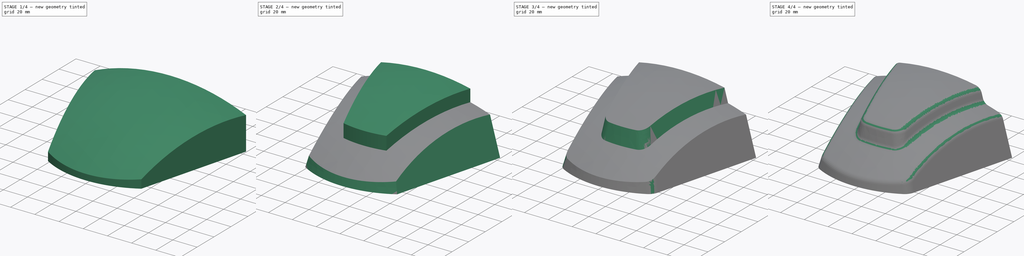
[diagram: build sequence overview — one tinted view per stage of 4, left to right]
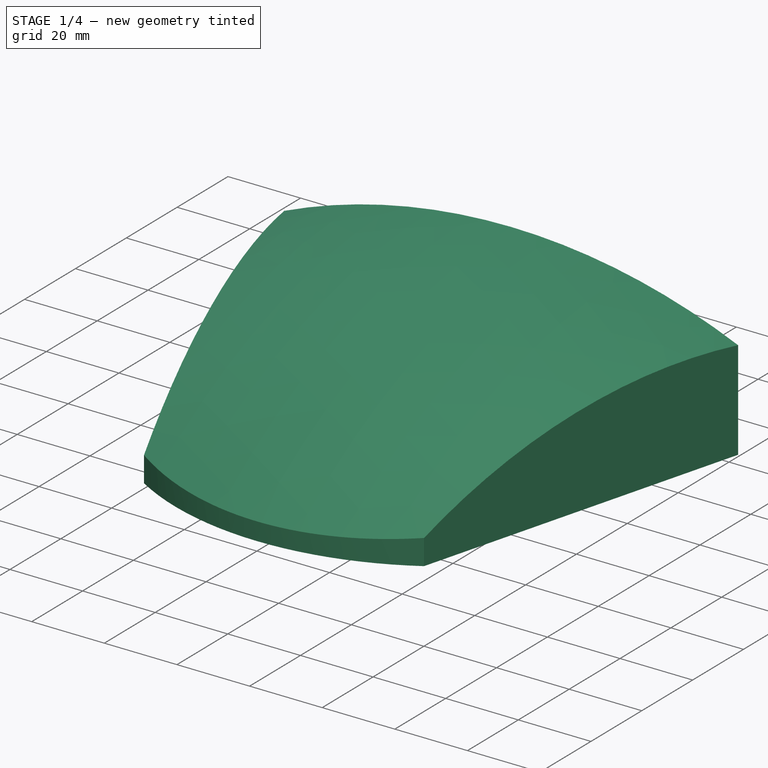
[diagram: stage 1 of 4 — iso view after this stage's code; geometry added in this stage tinted green]
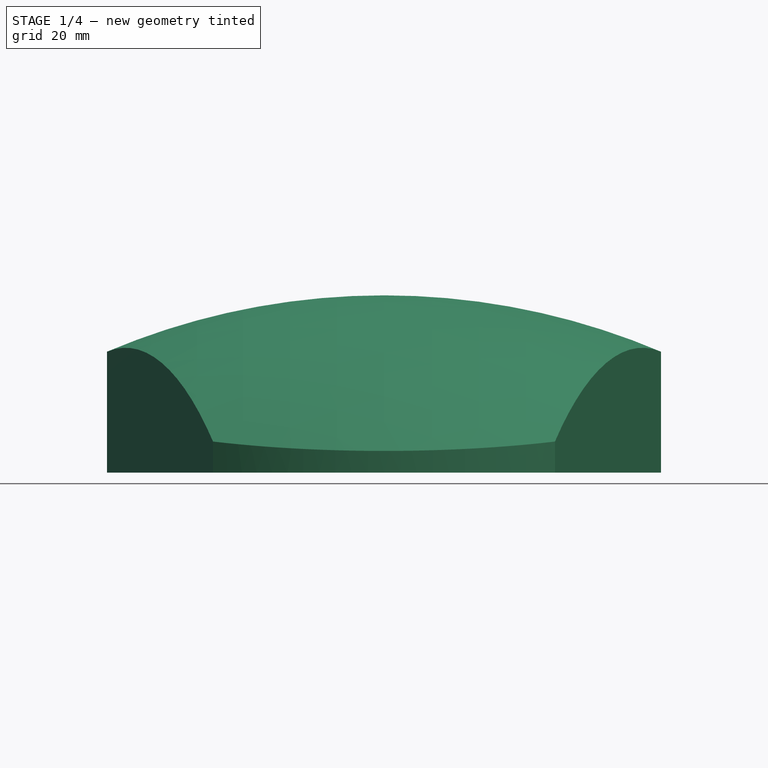
[diagram: stage 1 of 4 — front view after this stage's code; geometry added in this stage tinted green]
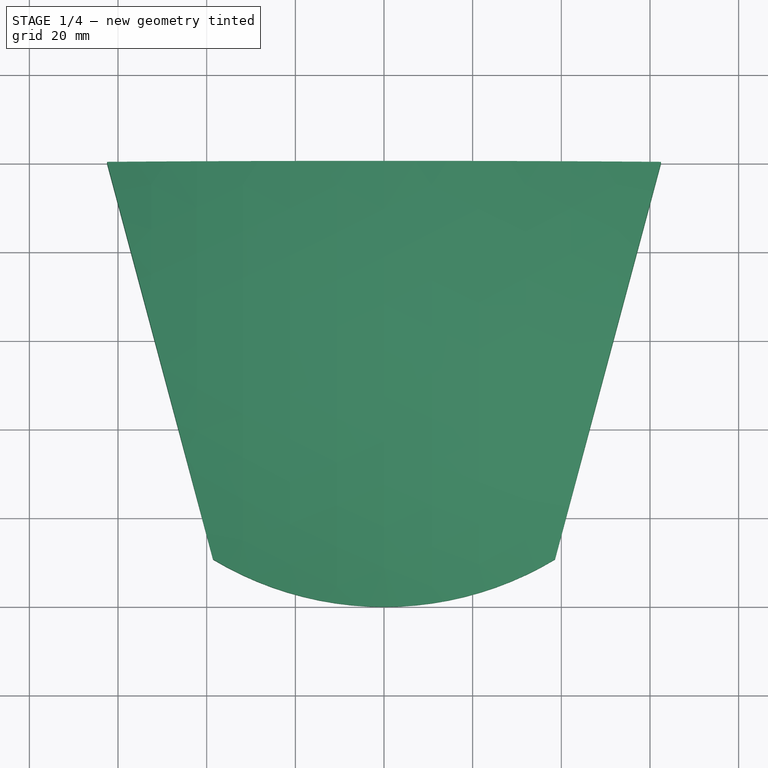
[diagram: stage 1 of 4 — top view after this stage's code; geometry added in this stage tinted green]
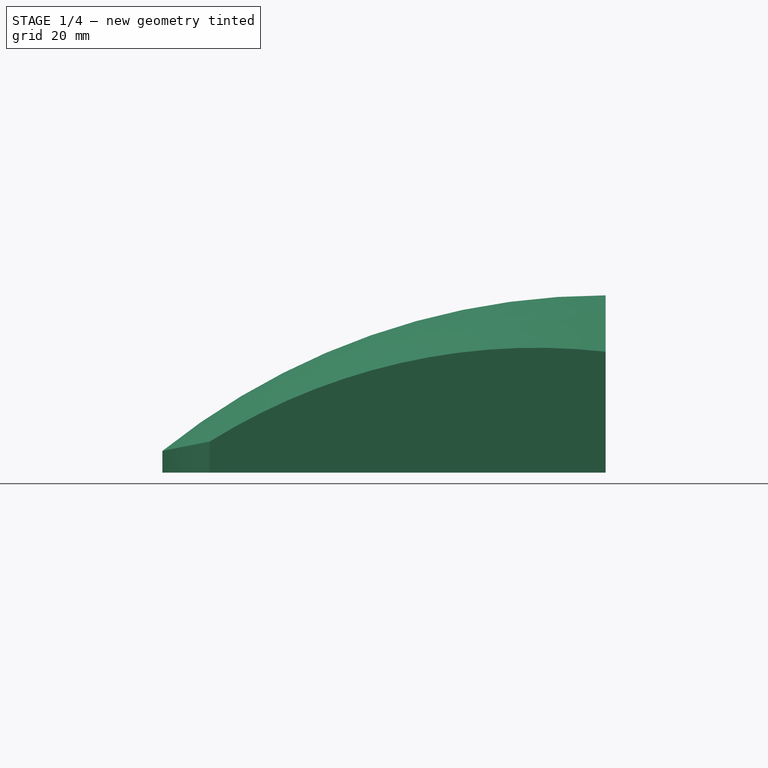
[diagram: stage 1 of 4 — right view after this stage's code; geometry added in this stage tinted green]
FCSTD DOCUMENT  (FreeCAD 1.0R39319 (Git))
Label: Mania2004
License: All rights reserved
LicenseURL: https://en.wikipedia.org/wiki/All_rights_reserved
objects: Sketcher::SketchObject×6, PartDesign::Draft×3, PartDesign::Pad×2, PartDesign::SubtractivePipe×2, PartDesign::Fillet×2, PartDesign::Thickness×1, PartDesign::Body×1
note: 43 computed .brp shape members not serialized (recipe doc carries the construction recipe); baked Part::Feature solids carry a one-line shape summary decoded from their .brp

FEATURE [Sketcher::SketchObject] Sketch
  ArcFitTolerance = 1e-06
  AttachmentSupport = -> [XY_Plane]
  FullyConstrained = true
  MakeInternals = false
  MapMode = 5
  sketch-geometry (5):
    g0: LineSegment StartX=-62.5 StartY=0 StartZ=0 EndX=62.5 EndY=0 EndZ=0
    g1: LineSegment StartX=62.5 StartY=0 StartZ=0 EndX=38.5654 EndY=-89.325 EndZ=0
    g2: LineSegment StartX=-38.5654 StartY=-89.325 StartZ=0 EndX=-62.5 EndY=0 EndZ=0
    g3: ArcOfCircle CenterX=5.6e-15 CenterY=-25 CenterZ=0 NormalX=0 NormalY=0 NormalZ=1 AngleXU=0 Radius=75 StartAngle=4.17231 EndAngle=5.25247
    g4: GeomPoint X=0 Y=-100 Z=0
  constraints (13):
    c: PointOnObject(g0,g-1)
    c: Coincident(g0,g1)
    c: Coincident(g2,g0)
    c: DistanceX(g0,g0) = 125
    c: Coincident(g3,g1)
    c: Coincident(g3,g2)
    c: Radius(g3) = 75
    c: Symmetric(g1,g2,g-2)
    c: Symmetric(g0,g0,g-2)
    c: PointOnObject(g4,g3)
    c: PointOnObject(g4,g-2)
    c: DistanceY(g4,g-1) = 100
    c: Angle(g1,g-2) = 0.261799
FEATURE [PartDesign::Pad] Pad
  Direction = (0,0,1)
  Length = 40
  Length2 = 10
  Profile = -> Sketch
  ReferenceAxis = -> Sketch [N_Axis]
  Refine = true
  Suppressed = false
  Type = 0
FEATURE [Sketcher::SketchObject] Sketch001
  ArcFitTolerance = 1e-06
  AttachmentSupport = -> [YZ_Plane]
  FullyConstrained = true
  MakeInternals = false
  MapMode = 5
  Placement = pos=(0,0,0) rot=(0.57735,0.57735,0.57735;2.0944rad)
  sketch-geometry (1):
    g0: ArcOfCircle CenterX=0 CenterY=-120 CenterZ=0 NormalX=0 NormalY=0 NormalZ=1 AngleXU=0 Radius=160 StartAngle=1.5708 EndAngle=2.29353
  constraints (5):
    c: PointOnObject(g0,g-2)
    c: PointOnObject(g0,g-2)
    c: PointOnObject(g0,g-1)
    c: Radius(g0) = 160
    c: Distance(g0,g-1) = 120
FEATURE [Sketcher::SketchObject] Sketch002
  ArcFitTolerance = 1e-06
  AttachmentSupport = -> [XZ_Plane]
  ExternalGeometry = -> [Sketch001]
  FullyConstrained = true
  MakeInternals = false
  MapMode = 5
  Placement = pos=(0,0,0) rot=(1,0,0;1.5708rad)
  sketch-geometry (2):
    g0: ArcOfCircle CenterX=0 CenterY=-120 CenterZ=0 NormalX=0 NormalY=0 NormalZ=1 AngleXU=0 Radius=160 StartAngle=0.848062 EndAngle=2.29353
    g1: ArcOfCircle CenterX=0 CenterY=0 CenterZ=0 NormalX=0 NormalY=0 NormalZ=1 AngleXU=0 Radius=105.83 StartAngle=0 EndAngle=3.14159
  constraints (8):
    c: PointOnObject(g-3,g0)
    c: PointOnObject(g0,g-1)
    c: PointOnObject(g0,g-1)
    c: Radius(g0) = 160
    c: PointOnObject(g0,g-2)
    c: Coincident(g1,g0)
    c: Coincident(g1,g-1)
    c: PointOnObject(g1,g-1)
FEATURE [PartDesign::SubtractivePipe] SubtractivePipe
  AuxilleryCurvelinear = true
  AuxillerySpineTangent = false
  BaseFeature = -> Pad
  Binormal = (0,0,0)
  Mode = 0
  Profile = -> Sketch002
  Refine = true
  Spine = -> Sketch001
  SpineTangent = false
  Suppressed = false
  Transformation = 0
  Transition = 0
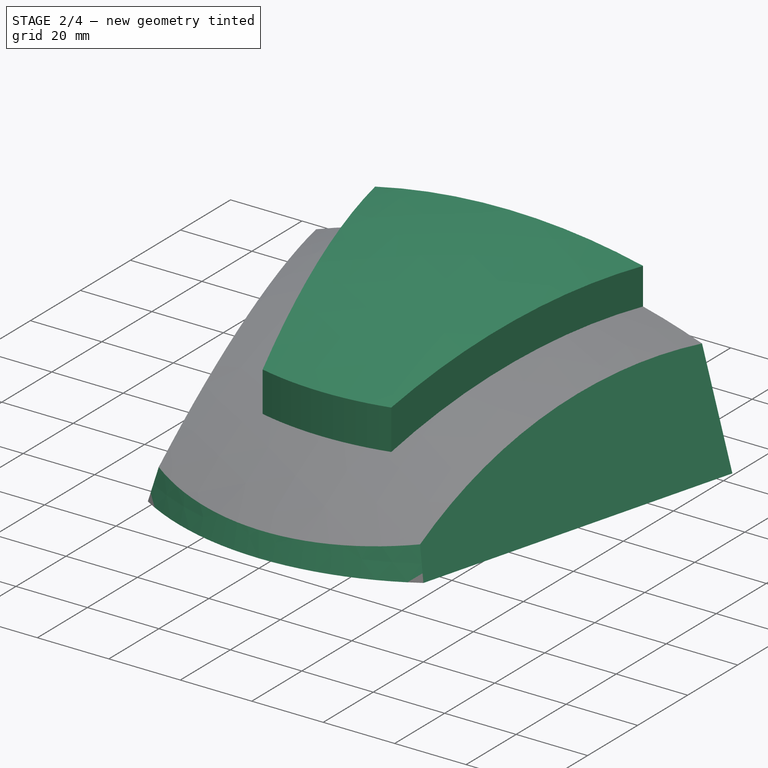
[diagram: stage 2 of 4 — iso view after this stage's code; geometry added in this stage tinted green]
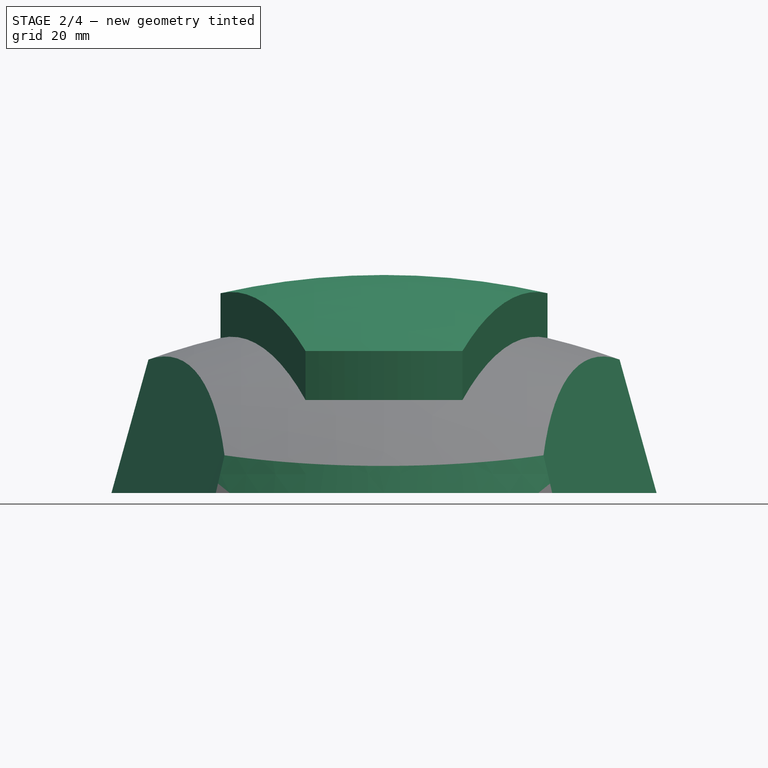
[diagram: stage 2 of 4 — front view after this stage's code; geometry added in this stage tinted green]
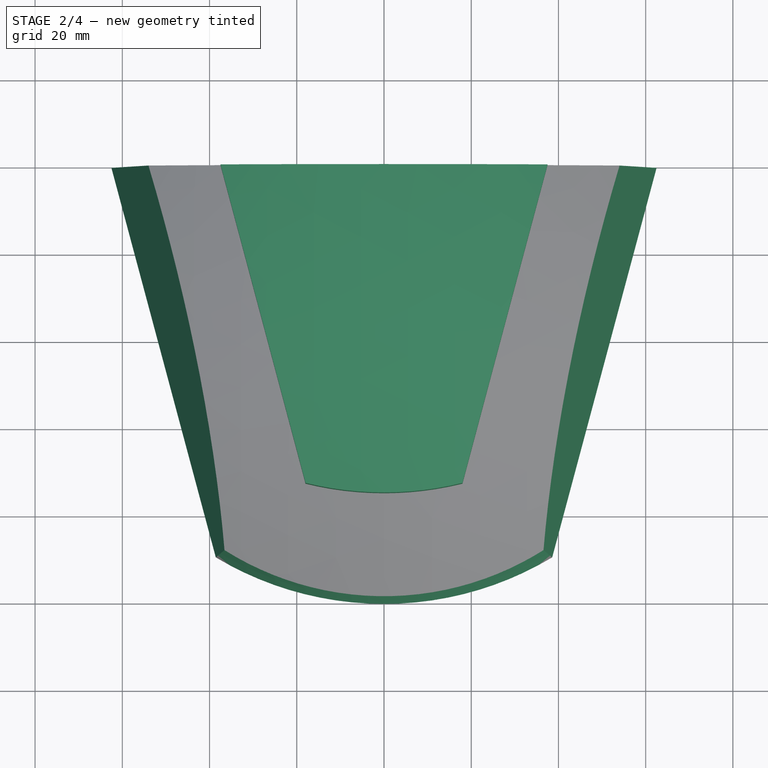
[diagram: stage 2 of 4 — top view after this stage's code; geometry added in this stage tinted green]
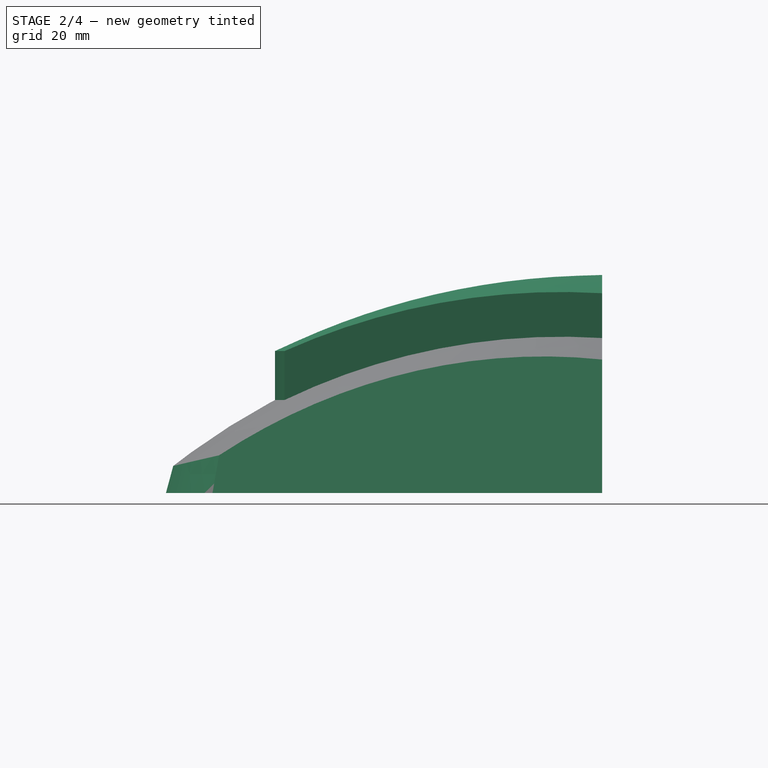
[diagram: stage 2 of 4 — right view after this stage's code; geometry added in this stage tinted green]
FEATURE [Sketcher::SketchObject] Sketch003
  ArcFitTolerance = 1e-06
  AttachmentSupport = -> [XY_Plane]
  ExternalGeometry = -> [SubtractivePipe]
  FullyConstrained = true
  MakeInternals = false
  MapMode = 5
  sketch-geometry (6):
    g0: LineSegment StartX=-37.5 StartY=0 StartZ=0 EndX=37.5 EndY=0 EndZ=0
    g1: LineSegment StartX=-37.5 StartY=0 StartZ=0 EndX=-17.9905 EndY=-72.8103 EndZ=0
    g2: LineSegment StartX=37.5 StartY=0 StartZ=0 EndX=17.9905 EndY=-72.8103 EndZ=0
    g3: ArcOfCircle CenterX=0 CenterY=5.8e-15 CenterZ=0 NormalX=0 NormalY=0 NormalZ=1 AngleXU=0 Radius=75 StartAngle=4.47015 EndAngle=4.95462
    g4: GeomPoint X=0 Y=-75 Z=0
    g5: GeomPoint X=0 Y=-100 Z=0
  constraints (16):
    c: PointOnObject(g0,g-1)
    c: Symmetric(g0,g0,g-2)
    c: Distance(g0,g-4) = 25
    c: Coincident(g1,g0)
    c: Coincident(g2,g0)
    c: Parallel(g1,g-4)
    c: Coincident(g3,g2)
    c: PointOnObject(g4,g3)
    c: PointOnObject(g4,g-2)
    c: PointOnObject(g5,g-5)
    c: PointOnObject(g5,g-2)
    c: DistanceY(g5,g4) = 25
    c: Coincident(g3,g1)
    c: PointOnObject(g3,g-2)
    c: Radius(g3) = 75
    c: Parallel(g2,g-3)
FEATURE [PartDesign::Pad] Pad001
  BaseFeature = -> SubtractivePipe
  Direction = (0,0,1)
  Length = 50
  Length2 = 10
  Profile = -> Sketch003
  ReferenceAxis = -> Sketch003 [N_Axis]
  Refine = true
  Suppressed = false
  Type = 0
FEATURE [Sketcher::SketchObject] Sketch004
  ArcFitTolerance = 1e-06
  AttachmentSupport = -> [YZ_Plane]
  ExternalGeometry = -> [Pad001]
  FullyConstrained = true
  MakeInternals = false
  MapMode = 5
  Placement = pos=(0,0,0) rot=(0.57735,0.57735,0.57735;2.0944rad)
  sketch-geometry (1):
    g0: ArcOfCircle CenterX=0 CenterY=-120 CenterZ=0 NormalX=0 NormalY=0 NormalZ=1 AngleXU=0 Radius=170 StartAngle=1.5708 EndAngle=2.35792
  constraints (4):
    c: PointOnObject(g0,g-2)
    c: Coincident(g0,g-3)
    c: Radius(g0) = 170
    c: PointOnObject(g0,g-1)
FEATURE [Sketcher::SketchObject] Sketch005
  ArcFitTolerance = 1e-06
  AttachmentSupport = -> [XZ_Plane]
  ExternalGeometry = -> [Sketch004]
  FullyConstrained = true
  MakeInternals = false
  MapMode = 5
  Placement = pos=(0,0,0) rot=(1,0,0;1.5708rad)
  sketch-geometry (2):
    g0: ArcOfCircle CenterX=0 CenterY=-120 CenterZ=0 NormalX=0 NormalY=0 NormalZ=1 AngleXU=0 Radius=170 StartAngle=0.783668 EndAngle=2.35792
    g1: ArcOfCircle CenterX=8.8e-15 CenterY=-50 CenterZ=0 NormalX=0 NormalY=0 NormalZ=1 AngleXU=0 Radius=130.384 StartAngle=0.393564 EndAngle=2.74803
  constraints (8):
    c: PointOnObject(g0,g-2)
    c: PointOnObject(g0,g-1)
    c: PointOnObject(g0,g-1)
    c: PointOnObject(g-3,g0)
    c: Radius(g0) = 170
    c: Coincident(g1,g0)
    c: Coincident(g1,g0)
    c: Distance(g1,g-1) = 50
FEATURE [PartDesign::SubtractivePipe] SubtractivePipe001
  AuxilleryCurvelinear = true
  AuxillerySpineTangent = false
  BaseFeature = -> Pad001
  Binormal = (0,0,0)
  Mode = 0
  Profile = -> Sketch005
  Refine = true
  Spine = -> Sketch004
  SpineTangent = false
  Suppressed = false
  Transformation = 0
  Transition = 0
FEATURE [PartDesign::Draft] Draft
  Angle = 15
  Base = -> SubtractivePipe001 [Face2,Face4,Face3]
  BaseFeature = -> SubtractivePipe001
  PullDirection = -> SubtractivePipe001 [Edge11]
  Refine = true
  SupportTransform = false
  Suppressed = false
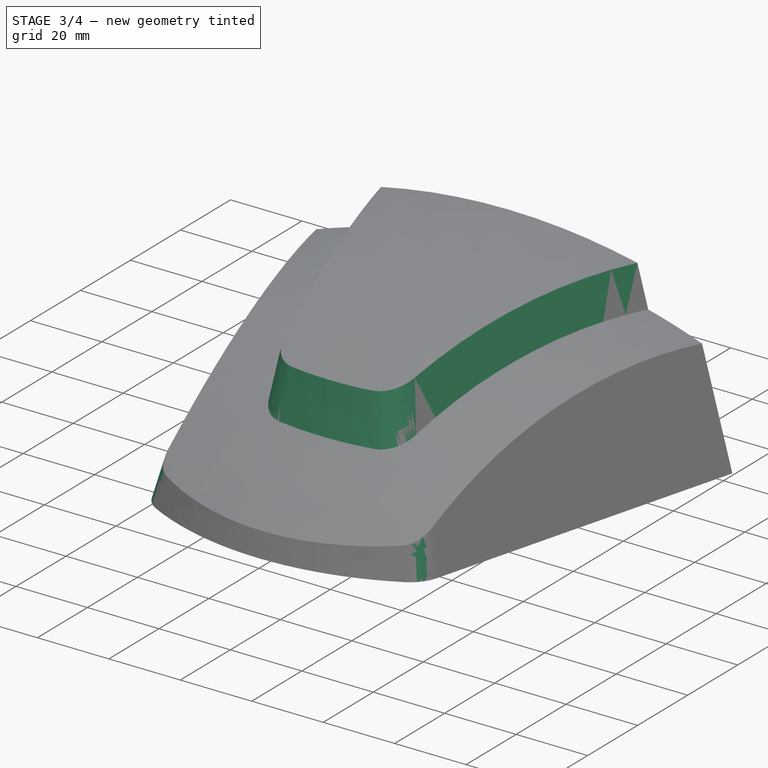
[diagram: stage 3 of 4 — iso view after this stage's code; geometry added in this stage tinted green]
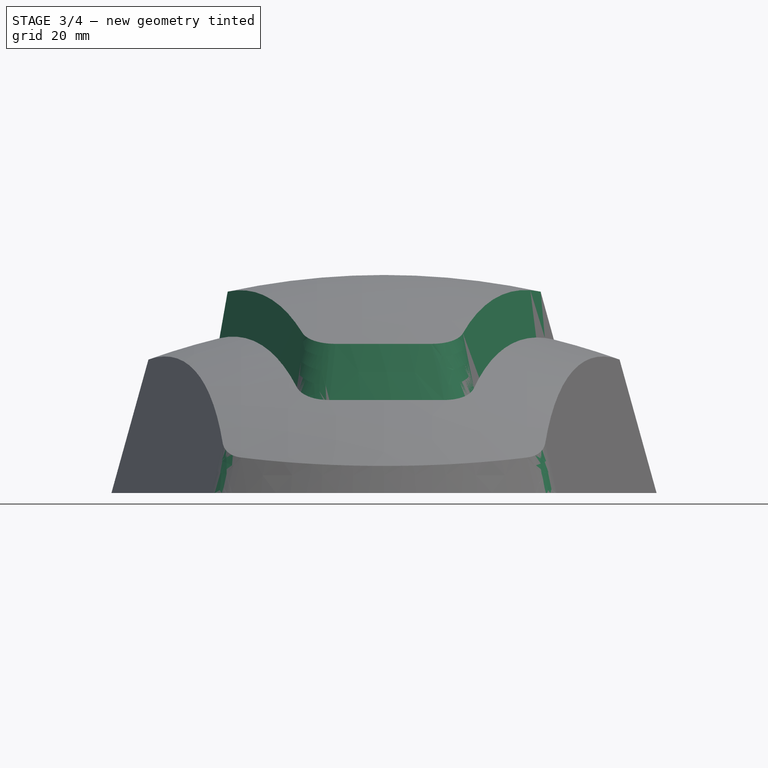
[diagram: stage 3 of 4 — front view after this stage's code; geometry added in this stage tinted green]
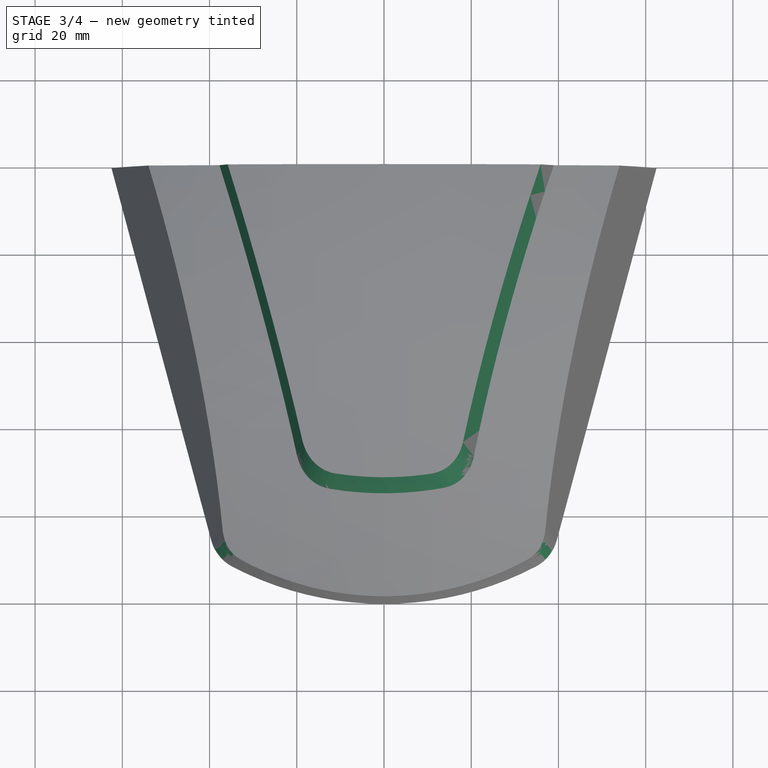
[diagram: stage 3 of 4 — top view after this stage's code; geometry added in this stage tinted green]
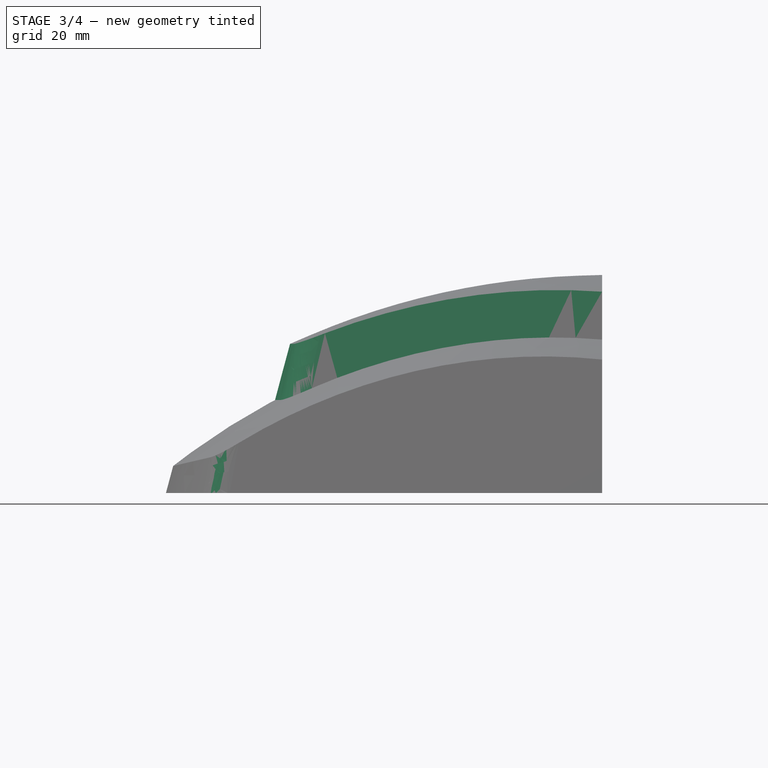
[diagram: stage 3 of 4 — right view after this stage's code; geometry added in this stage tinted green]
FEATURE [PartDesign::Draft] Draft001
  Angle = 15
  Base = -> Draft [Face7]
  BaseFeature = -> Draft
  PullDirection = -> Draft [Edge17]
  Refine = true
  SupportTransform = false
  Suppressed = false
FEATURE [PartDesign::Draft] Draft002
  Angle = 15
  Base = -> Draft001 [Face8,Face6]
  BaseFeature = -> Draft001
  Refine = true
  SupportTransform = false
  Suppressed = false
FEATURE [PartDesign::Fillet] Fillet
  Base = -> Draft002 [Edge21,Edge23,Edge13,Edge10]
  BaseFeature = -> Draft002
  Radius = 10
  Refine = true
  SupportTransform = false
  Suppressed = false
  UseAllEdges = false
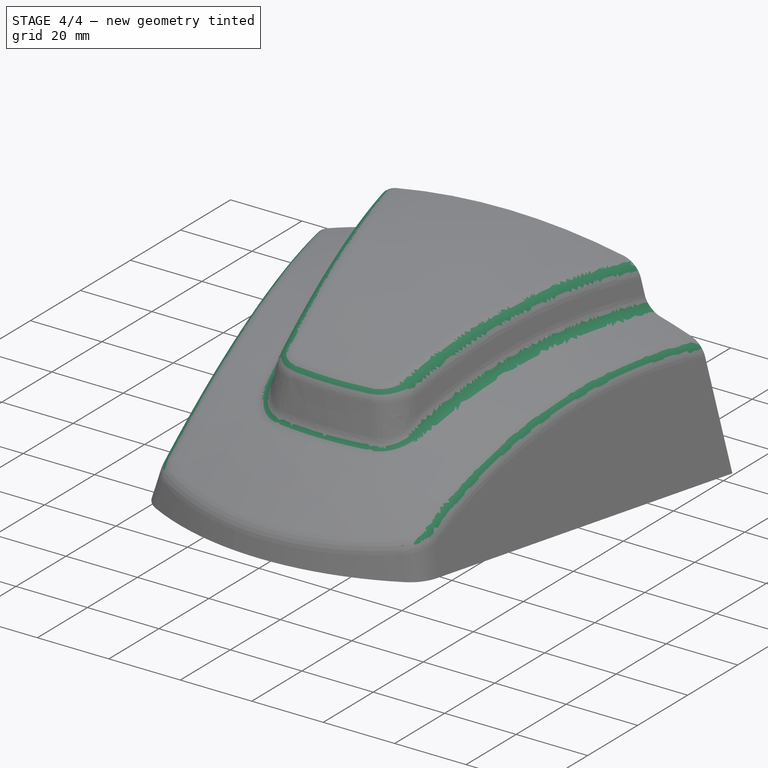
[diagram: stage 4 of 4 — iso view after this stage's code; geometry added in this stage tinted green]
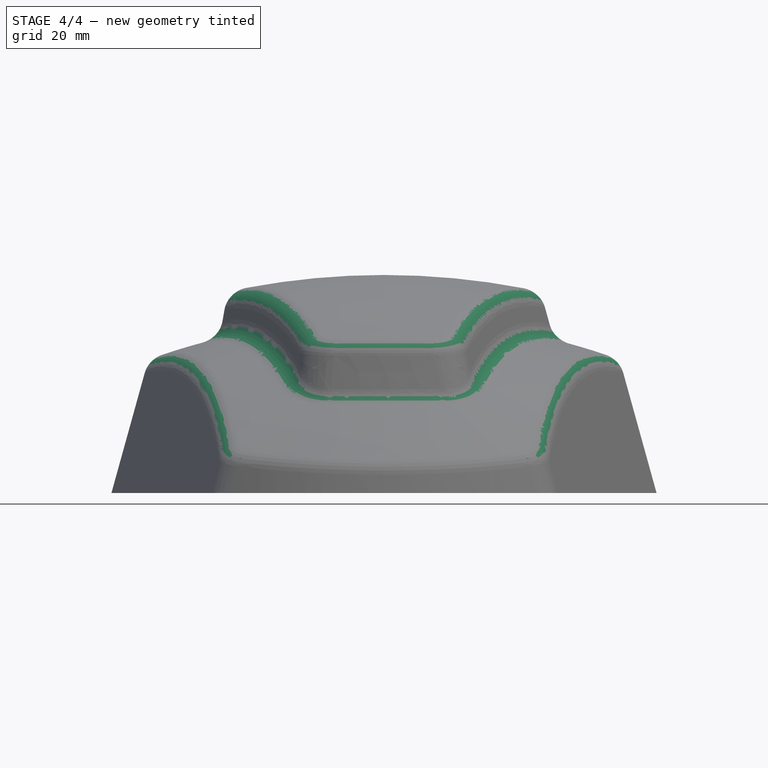
[diagram: stage 4 of 4 — front view after this stage's code; geometry added in this stage tinted green]
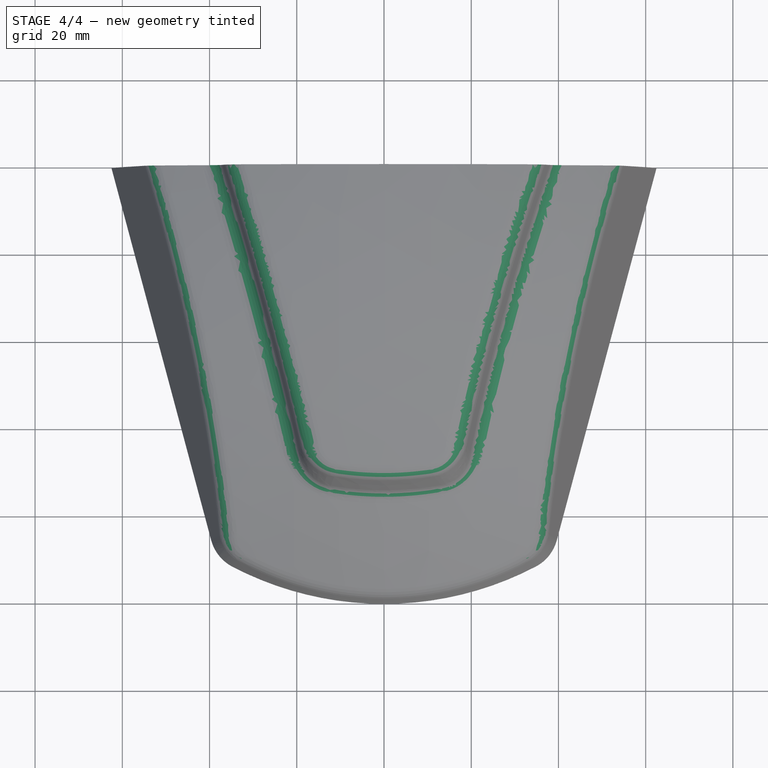
[diagram: stage 4 of 4 — top view after this stage's code; geometry added in this stage tinted green]
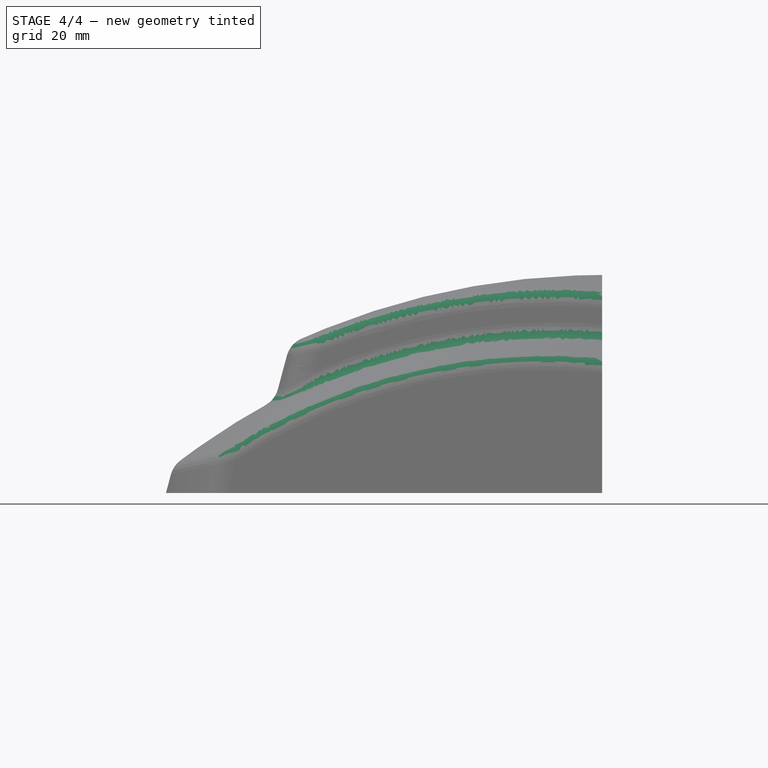
[diagram: stage 4 of 4 — right view after this stage's code; geometry added in this stage tinted green]
FEATURE [PartDesign::Fillet] Fillet001
  Base = -> Fillet [Edge34,Edge9,Edge4]
  BaseFeature = -> Fillet
  Radius = 6
  Refine = true
  SupportTransform = false
  Suppressed = false
  UseAllEdges = false
FEATURE [PartDesign::Thickness] Thickness
  Base = -> Fillet001 [Face14,Face2]
  BaseFeature = -> Fillet001
  Intersection = false
  Join = 0
  Mode = 0
  Refine = true
  Reversed = true
  SupportTransform = false
  Suppressed = false
  Value = 4
FEATURE [PartDesign::Body] Body
  AllowCompound = false
  Group = -> [Sketch,Pad,Sketch001,Sketch002,SubtractivePipe,Sketch003,Pad001,Sketch004,Sketch005,SubtractivePipe001,Draft,Draft001,Draft002,Fillet,Fillet001,Thickness]
  Origin = -> Origin
  Tip = -> Thickness
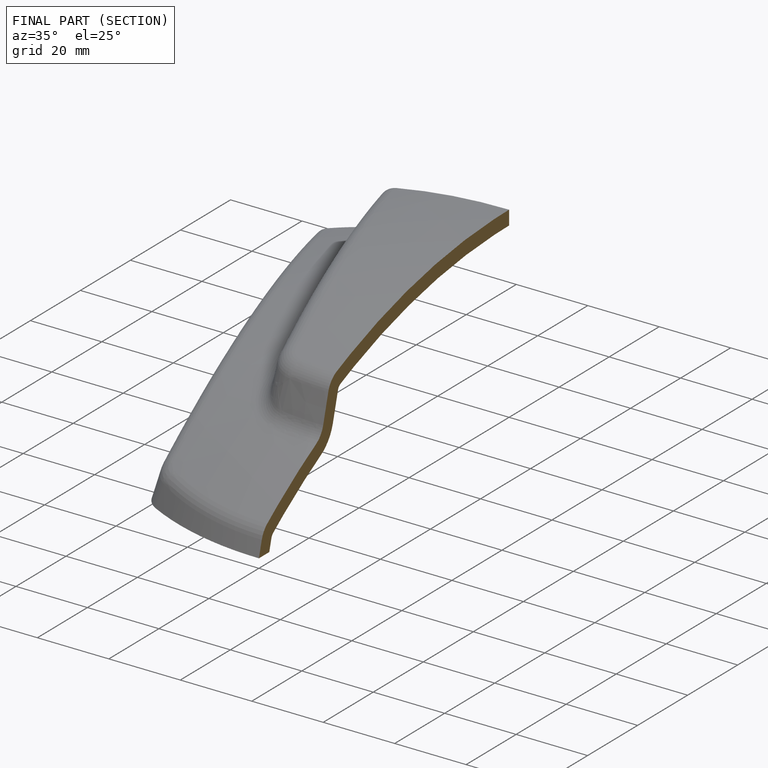
[diagram: finished part — half-section view (interior)]
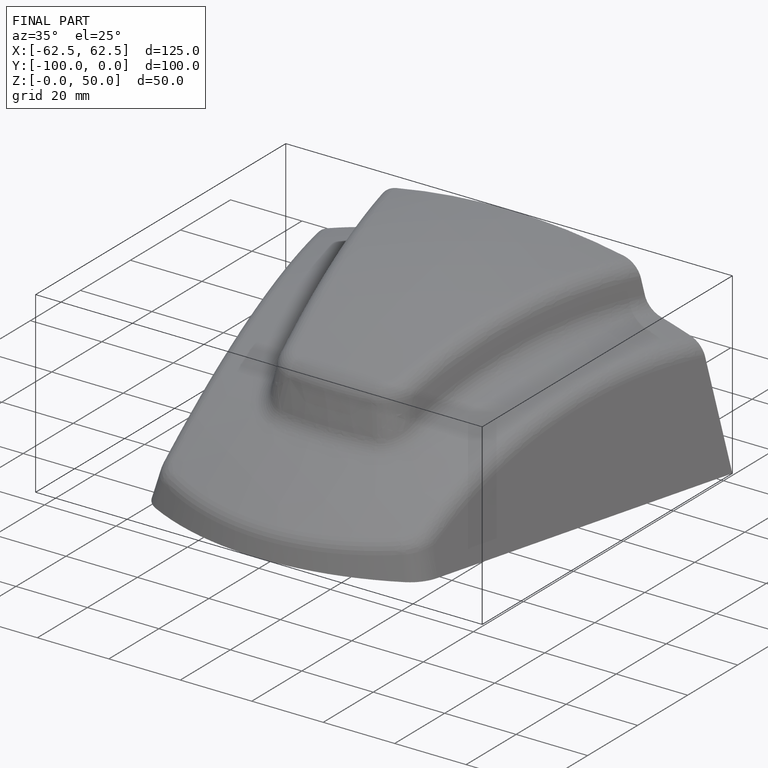
[diagram: finished part — iso view with bounding-box wireframe]
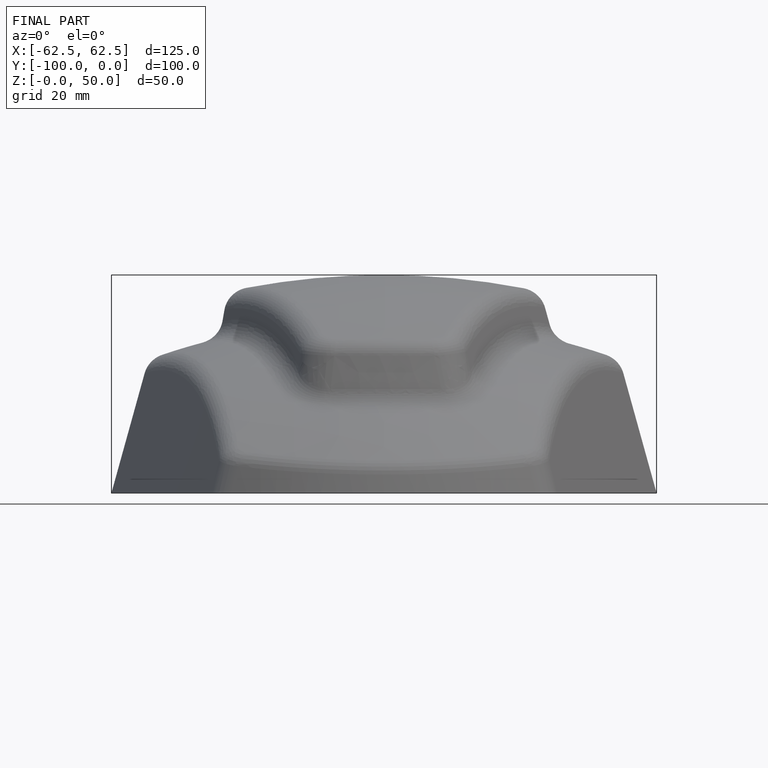
[diagram: finished part — front view with bounding-box wireframe]
